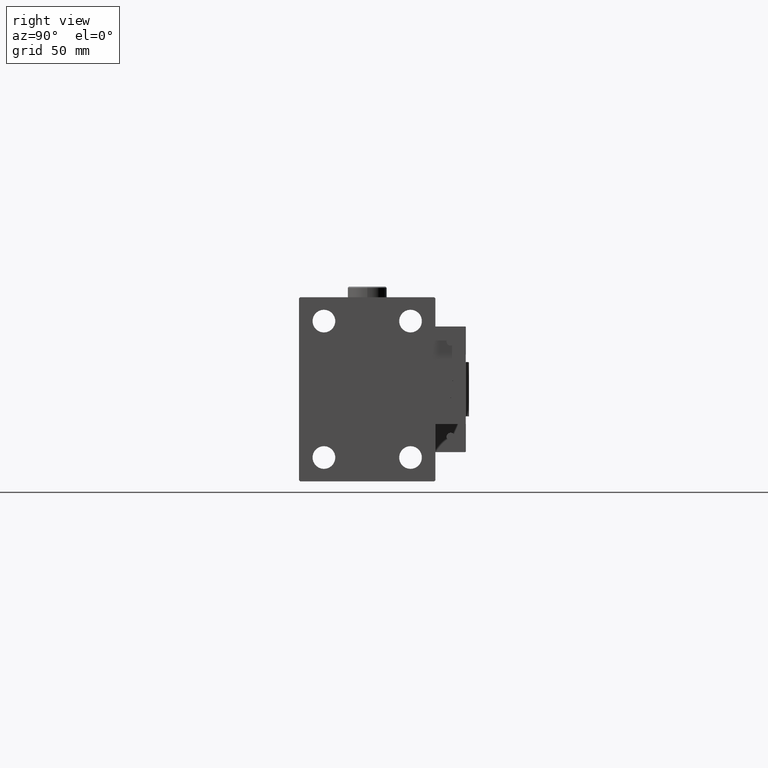
[diagram: clean part render]
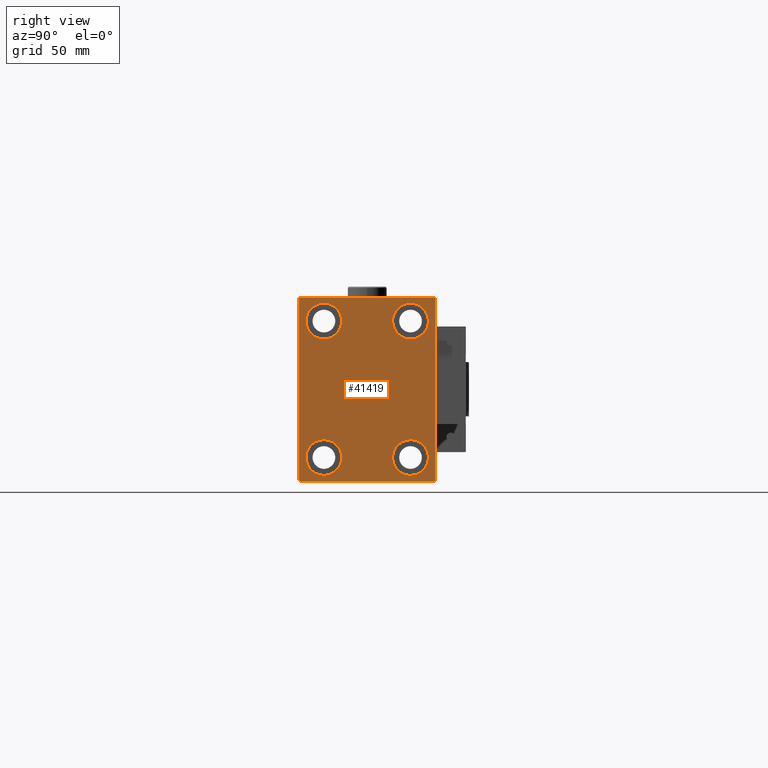
[diagram: same view with one face highlighted and labeled with its STEP entity id]
A machine part, right view. The second image highlights one B-rep face of the part: STEP entity #41419.
In plain terms, the highlighted planar face has unit normal (1, 0, 0).
Its self-contained STEP definition (entity closure, byte-faithful):
#284 = VERTEX_POINT ( 'NONE', #28751 ) ;
#287 = CARTESIAN_POINT ( 'NONE',  ( 183.0000000000000000, -31.50000000000000000, 41.99999999999996447 ) ) ;
#707 = VERTEX_POINT ( 'NONE', #38197 ) ;
#2427 = EDGE_CURVE ( 'NONE', #22379, #42382, #14225, .T. ) ;
#2761 = CARTESIAN_POINT ( 'NONE',  ( 183.0000000000000000, -19.99999999999999645, 31.50000000000000000 ) ) ;
#3002 = CARTESIAN_POINT ( 'NONE',  ( 183.0000000000000000, 19.99999999999999645, -23.24999999999999289 ) ) ;
#3057 = AXIS2_PLACEMENT_3D ( 'NONE', #19307, #39943, #47929 ) ;
#3085 = VERTEX_POINT ( 'NONE', #40041 ) ;
#3153 = ORIENTED_EDGE ( 'NONE', *, *, #11220, .T. ) ;
#3298 = DIRECTION ( 'NONE',  ( 0.000000000000000000, 0.000000000000000000, -1.000000000000000000 ) ) ;
#4401 = DIRECTION ( 'NONE',  ( 0.000000000000000000, -1.000000000000000000, -2.202823461557850341E-16 ) ) ;
#4523 = CARTESIAN_POINT ( 'NONE',  ( 183.0000000000000000, 31.00000000000002842, 42.50000000000000711 ) ) ;
#4884 = VERTEX_POINT ( 'NONE', #40746 ) ;
#4918 = EDGE_CURVE ( 'NONE', #284, #43347, #29292, .T. ) ;
#4941 = VECTOR ( 'NONE', #27728, 1000.000000000000114 ) ;
#5347 = VERTEX_POINT ( 'NONE', #33129 ) ;
#5391 = EDGE_CURVE ( 'NONE', #43347, #284, #34562, .T. ) ;
#5493 = CARTESIAN_POINT ( 'NONE',  ( 183.0000000000000000, 19.99999999999999645, -31.49999999999999289 ) ) ;
#5504 = VECTOR ( 'NONE', #18230, 1000.000000000000114 ) ;
#5915 = ORIENTED_EDGE ( 'NONE', *, *, #5391, .T. ) ;
#6364 = AXIS2_PLACEMENT_3D ( 'NONE', #2761, #15109, #49230 ) ;
#6786 = VERTEX_POINT ( 'NONE', #37846 ) ;
#7303 = EDGE_CURVE ( 'NONE', #24712, #29544, #39659, .T. ) ;
#7433 = FACE_BOUND ( 'NONE', #33969, .T. ) ;
#8381 = DIRECTION ( 'NONE',  ( -1.000000000000000000, -0.000000000000000000, -0.000000000000000000 ) ) ;
#9346 = CARTESIAN_POINT ( 'NONE',  ( 183.0000000000000000, 31.50000000000001421, -42.00000000000000711 ) ) ;
#9380 = DIRECTION ( 'NONE',  ( -1.000000000000000000, -0.000000000000000000, -0.000000000000000000 ) ) ;
#10157 = DIRECTION ( 'NONE',  ( -1.000000000000000000, -0.000000000000000000, -0.000000000000000000 ) ) ;
#11220 = EDGE_CURVE ( 'NONE', #53881, #3085, #21442, .T. ) ;
#11824 = PLANE ( 'NONE',  #20798 ) ;
#11912 = CIRCLE ( 'NONE', #39126, 8.250000000000000000 ) ;
#12048 = LINE ( 'NONE', #24697, #4941 ) ;
#12771 = LINE ( 'NONE', #54303, #47351 ) ;
#12827 = LINE ( 'NONE', #28540, #24582 ) ;
#13120 = ORIENTED_EDGE ( 'NONE', *, *, #37808, .T. ) ;
#14188 = VERTEX_POINT ( 'NONE', #287 ) ;
#14225 = CIRCLE ( 'NONE', #15999, 8.250000000000000000 ) ;
#14641 = CARTESIAN_POINT ( 'NONE',  ( 183.0000000000000000, -31.50000000000000000, -42.50000000000000711 ) ) ;
#14963 = ORIENTED_EDGE ( 'NONE', *, *, #22101, .T. ) ;
#15109 = DIRECTION ( 'NONE',  ( -1.000000000000000000, -0.000000000000000000, -0.000000000000000000 ) ) ;
#15504 = ORIENTED_EDGE ( 'NONE', *, *, #2427, .T. ) ;
#15713 = DIRECTION ( 'NONE',  ( -1.000000000000000000, -0.000000000000000000, -0.000000000000000000 ) ) ;
#15999 = AXIS2_PLACEMENT_3D ( 'NONE', #5493, #10157, #46721 ) ;
#16195 = VECTOR ( 'NONE', #44051, 1000.000000000000000 ) ;
#16362 = EDGE_LOOP ( 'NONE', ( #5915, #53228 ) ) ;
#16958 = ORIENTED_EDGE ( 'NONE', *, *, #38909, .T. ) ;
#17420 = LINE ( 'NONE', #17698, #5504 ) ;
#17698 = CARTESIAN_POINT ( 'NONE',  ( 183.0000000000000000, -36.75000000000000711, -36.75000000000000711 ) ) ;
#17749 = ORIENTED_EDGE ( 'NONE', *, *, #51656, .T. ) ;
#18045 = EDGE_LOOP ( 'NONE', ( #19875, #17749, #14963, #16958, #42858, #13120, #44348, #50962 ) ) ;
#18163 = CIRCLE ( 'NONE', #34853, 8.250000000000000000 ) ;
#18230 = DIRECTION ( 'NONE',  ( -0.000000000000000000, 0.7071067811865474617, -0.7071067811865474617 ) ) ;
#19307 = CARTESIAN_POINT ( 'NONE',  ( 183.0000000000000000, -20.00000000000000355, -31.49999999999999289 ) ) ;
#19316 = EDGE_CURVE ( 'NONE', #42382, #22379, #11912, .T. ) ;
#19384 = ORIENTED_EDGE ( 'NONE', *, *, #41097, .T. ) ;
#19875 = ORIENTED_EDGE ( 'NONE', *, *, #47220, .T. ) ;
#20115 = DIRECTION ( 'NONE',  ( 0.000000000000000000, 0.000000000000000000, 1.000000000000000000 ) ) ;
#20370 = EDGE_CURVE ( 'NONE', #5347, #4884, #36546, .T. ) ;
#20468 = CARTESIAN_POINT ( 'NONE',  ( 183.0000000000000000, 20.00000000000000355, 31.50000000000000000 ) ) ;
#20798 = AXIS2_PLACEMENT_3D ( 'NONE', #49491, #24183, #3298 ) ;
#20910 = EDGE_CURVE ( 'NONE', #6786, #45657, #12048, .T. ) ;
#20992 = CARTESIAN_POINT ( 'NONE',  ( 183.0000000000000000, 19.99999999999999645, -31.49999999999999289 ) ) ;
#21442 = CIRCLE ( 'NONE', #3057, 8.250000000000000000 ) ;
#21542 = DIRECTION ( 'NONE',  ( -1.000000000000000000, -0.000000000000000000, -0.000000000000000000 ) ) ;
#22101 = EDGE_CURVE ( 'NONE', #14188, #49833, #34365, .T. ) ;
#22379 = VERTEX_POINT ( 'NONE', #3002 ) ;
#23082 = CARTESIAN_POINT ( 'NONE',  ( 183.0000000000000000, 31.00000000000001421, -42.50000000000000711 ) ) ;
#23344 = AXIS2_PLACEMENT_3D ( 'NONE', #46574, #54044, #36991 ) ;
#24183 = DIRECTION ( 'NONE',  ( 1.000000000000000000, 0.000000000000000000, 0.000000000000000000 ) ) ;
#24582 = VECTOR ( 'NONE', #49707, 1000.000000000000114 ) ;
#24697 = CARTESIAN_POINT ( 'NONE',  ( 183.0000000000000000, 36.75000000000002132, 36.75000000000002132 ) ) ;
#24712 = VERTEX_POINT ( 'NONE', #31322 ) ;
#25341 = CARTESIAN_POINT ( 'NONE',  ( 183.0000000000000000, 20.00000000000000355, 31.50000000000000000 ) ) ;
#25417 = LINE ( 'NONE', #30092, #50117 ) ;
#27508 = AXIS2_PLACEMENT_3D ( 'NONE', #25341, #9380, #42909 ) ;
#27728 = DIRECTION ( 'NONE',  ( -0.000000000000000000, -0.7071067811865474617, 0.7071067811865474617 ) ) ;
#28320 = FACE_BOUND ( 'NONE', #32183, .T. ) ;
#28540 = CARTESIAN_POINT ( 'NONE',  ( 183.0000000000000000, -36.74999999999997868, 36.74999999999997868 ) ) ;
#28600 = FACE_BOUND ( 'NONE', #35088, .T. ) ;
#28751 = CARTESIAN_POINT ( 'NONE',  ( 183.0000000000000000, 20.00000000000000355, 39.74999999999999289 ) ) ;
#29292 = CIRCLE ( 'NONE', #27508, 8.249999999999992895 ) ;
#29544 = VERTEX_POINT ( 'NONE', #23082 ) ;
#30092 = CARTESIAN_POINT ( 'NONE',  ( 183.0000000000000000, 36.75000000000001421, -36.75000000000001421 ) ) ;
#31274 = VERTEX_POINT ( 'NONE', #9346 ) ;
#31322 = CARTESIAN_POINT ( 'NONE',  ( 183.0000000000000000, -31.00000000000000000, -42.50000000000000711 ) ) ;
#31965 = CARTESIAN_POINT ( 'NONE',  ( 183.0000000000000000, -31.50000000000000000, -42.00000000000000711 ) ) ;
#32183 = EDGE_LOOP ( 'NONE', ( #47211, #15504 ) ) ;
#32722 = CIRCLE ( 'NONE', #6364, 8.249999999999992895 ) ;
#32861 = DIRECTION ( 'NONE',  ( 0.000000000000000000, 0.000000000000000000, 1.000000000000000000 ) ) ;
#33129 = CARTESIAN_POINT ( 'NONE',  ( 183.0000000000000000, -19.99999999999999645, 23.25000000000000355 ) ) ;
#33209 = VECTOR ( 'NONE', #4401, 1000.000000000000000 ) ;
#33408 = DIRECTION ( 'NONE',  ( 0.000000000000000000, -1.632680918566406300E-16, 1.000000000000000000 ) ) ;
#33969 = EDGE_LOOP ( 'NONE', ( #19384, #3153 ) ) ;
#34365 = LINE ( 'NONE', #42334, #35586 ) ;
#34562 = CIRCLE ( 'NONE', #37214, 8.249999999999992895 ) ;
#34655 = EDGE_CURVE ( 'NONE', #31274, #6786, #12771, .T. ) ;
#34853 = AXIS2_PLACEMENT_3D ( 'NONE', #36343, #15713, #20115 ) ;
#35088 = EDGE_LOOP ( 'NONE', ( #46803, #36738 ) ) ;
#35586 = VECTOR ( 'NONE', #38748, 1000.000000000000000 ) ;
#36275 = FACE_BOUND ( 'NONE', #16362, .T. ) ;
#36343 = CARTESIAN_POINT ( 'NONE',  ( 183.0000000000000000, -20.00000000000000355, -31.49999999999999289 ) ) ;
#36546 = CIRCLE ( 'NONE', #23344, 8.249999999999992895 ) ;
#36738 = ORIENTED_EDGE ( 'NONE', *, *, #38288, .T. ) ;
#36834 = FACE_OUTER_BOUND ( 'NONE', #18045, .T. ) ;
#36991 = DIRECTION ( 'NONE',  ( 0.000000000000000000, 0.000000000000000000, 1.000000000000000000 ) ) ;
#37148 = CARTESIAN_POINT ( 'NONE',  ( 183.0000000000000000, 31.50000000000000000, 42.50000000000000711 ) ) ;
#37214 = AXIS2_PLACEMENT_3D ( 'NONE', #20468, #8381, #32861 ) ;
#37808 = EDGE_CURVE ( 'NONE', #29544, #31274, #25417, .T. ) ;
#37846 = CARTESIAN_POINT ( 'NONE',  ( 183.0000000000000000, 31.50000000000000000, 42.00000000000003553 ) ) ;
#38197 = CARTESIAN_POINT ( 'NONE',  ( 183.0000000000000000, -30.99999999999997158, 42.49999999999999289 ) ) ;
#38288 = EDGE_CURVE ( 'NONE', #4884, #5347, #32722, .T. ) ;
#38320 = DIRECTION ( 'NONE',  ( 0.000000000000000000, 0.000000000000000000, 1.000000000000000000 ) ) ;
#38748 = DIRECTION ( 'NONE',  ( 0.000000000000000000, 0.000000000000000000, -1.000000000000000000 ) ) ;
#38909 = EDGE_CURVE ( 'NONE', #49833, #24712, #17420, .T. ) ;
#39126 = AXIS2_PLACEMENT_3D ( 'NONE', #20992, #21542, #38320 ) ;
#39520 = CARTESIAN_POINT ( 'NONE',  ( 183.0000000000000000, 19.99999999999999645, -39.74999999999999289 ) ) ;
#39659 = LINE ( 'NONE', #14641, #16195 ) ;
#39943 = DIRECTION ( 'NONE',  ( -1.000000000000000000, -0.000000000000000000, -0.000000000000000000 ) ) ;
#40041 = CARTESIAN_POINT ( 'NONE',  ( 183.0000000000000000, -20.00000000000000355, -39.74999999999999289 ) ) ;
#40746 = CARTESIAN_POINT ( 'NONE',  ( 183.0000000000000000, -19.99999999999999645, 39.74999999999999289 ) ) ;
#41097 = EDGE_CURVE ( 'NONE', #3085, #53881, #18163, .T. ) ;
#41419 = ADVANCED_FACE ( 'NONE', ( #28320, #28600, #36275, #7433, #36834 ), #11824, .T. ) ;
#42334 = CARTESIAN_POINT ( 'NONE',  ( 183.0000000000000000, -31.50000000000000000, 42.49999999999999289 ) ) ;
#42382 = VERTEX_POINT ( 'NONE', #39520 ) ;
#42438 = DIRECTION ( 'NONE',  ( -0.000000000000000000, 0.7071067811865474617, 0.7071067811865474617 ) ) ;
#42858 = ORIENTED_EDGE ( 'NONE', *, *, #7303, .T. ) ;
#42909 = DIRECTION ( 'NONE',  ( 0.000000000000000000, 0.000000000000000000, 1.000000000000000000 ) ) ;
#43347 = VERTEX_POINT ( 'NONE', #47079 ) ;
#44051 = DIRECTION ( 'NONE',  ( 0.000000000000000000, 1.000000000000000000, 0.000000000000000000 ) ) ;
#44136 = CARTESIAN_POINT ( 'NONE',  ( 183.0000000000000000, -20.00000000000000355, -23.24999999999999289 ) ) ;
#44348 = ORIENTED_EDGE ( 'NONE', *, *, #34655, .T. ) ;
#45657 = VERTEX_POINT ( 'NONE', #4523 ) ;
#46574 = CARTESIAN_POINT ( 'NONE',  ( 183.0000000000000000, -19.99999999999999645, 31.50000000000000000 ) ) ;
#46721 = DIRECTION ( 'NONE',  ( 0.000000000000000000, 0.000000000000000000, 1.000000000000000000 ) ) ;
#46803 = ORIENTED_EDGE ( 'NONE', *, *, #20370, .T. ) ;
#47079 = CARTESIAN_POINT ( 'NONE',  ( 183.0000000000000000, 20.00000000000000355, 23.25000000000000355 ) ) ;
#47211 = ORIENTED_EDGE ( 'NONE', *, *, #19316, .T. ) ;
#47220 = EDGE_CURVE ( 'NONE', #45657, #707, #49801, .T. ) ;
#47351 = VECTOR ( 'NONE', #33408, 1000.000000000000000 ) ;
#47929 = DIRECTION ( 'NONE',  ( 0.000000000000000000, 0.000000000000000000, 1.000000000000000000 ) ) ;
#49230 = DIRECTION ( 'NONE',  ( 0.000000000000000000, 0.000000000000000000, 1.000000000000000000 ) ) ;
#49491 = CARTESIAN_POINT ( 'NONE',  ( 183.0000000000000000, 0.000000000000000000, 0.000000000000000000 ) ) ;
#49707 = DIRECTION ( 'NONE',  ( 0.000000000000000000, -0.7071067811865474617, -0.7071067811865474617 ) ) ;
#49801 = LINE ( 'NONE', #37148, #33209 ) ;
#49833 = VERTEX_POINT ( 'NONE', #31965 ) ;
#50117 = VECTOR ( 'NONE', #42438, 1000.000000000000114 ) ;
#50962 = ORIENTED_EDGE ( 'NONE', *, *, #20910, .T. ) ;
#51656 = EDGE_CURVE ( 'NONE', #707, #14188, #12827, .T. ) ;
#53228 = ORIENTED_EDGE ( 'NONE', *, *, #4918, .T. ) ;
#53881 = VERTEX_POINT ( 'NONE', #44136 ) ;
#54044 = DIRECTION ( 'NONE',  ( -1.000000000000000000, -0.000000000000000000, -0.000000000000000000 ) ) ;
#54303 = CARTESIAN_POINT ( 'NONE',  ( 183.0000000000000000, 31.50000000000001421, -42.50000000000000711 ) ) ;